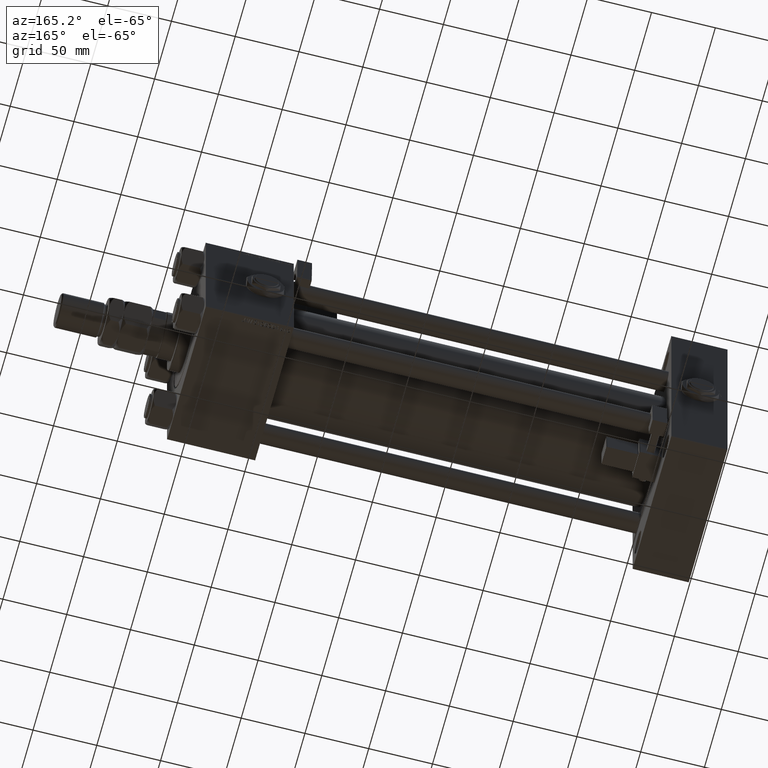
[diagram: clean part render]
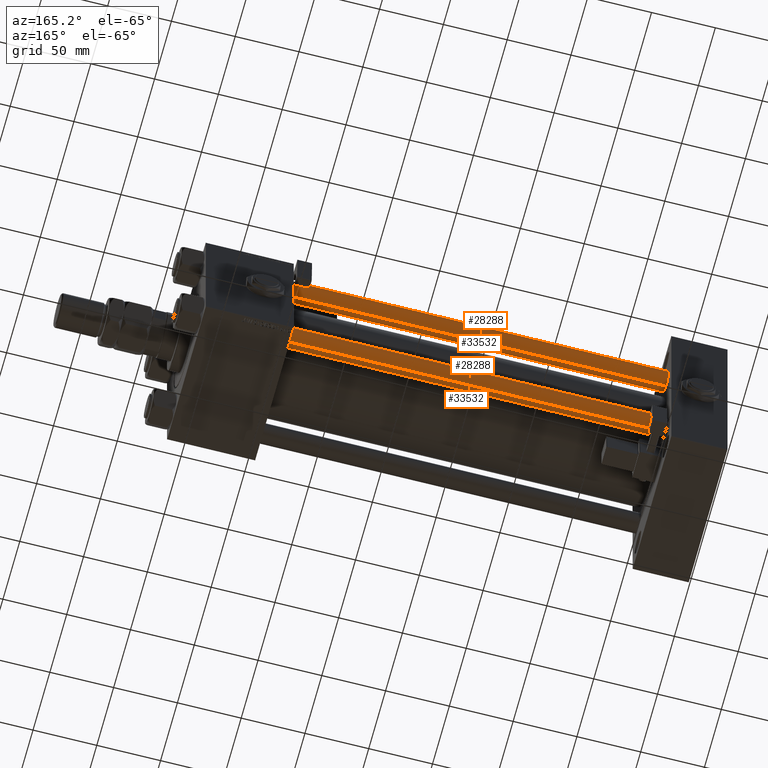
[diagram: same view with one multi-face feature highlighted, each face labeled with its STEP entity id]
A machine part, auxiliary view. The highlighted faces form ONE feature: a constant-radius fillet chain: 4 tangent blend faces with common blend radius 8 mm. The faces share edges in the B-rep.
Their STEP definitions:
[1] entity #28288 (Cylinder):
#1216 = VECTOR ( 'NONE', #50307, 1000.000000000000000 ) ;
#1632 = AXIS2_PLACEMENT_3D ( 'NONE', #35618, #31334, #9114 ) ;
#2679 = ORIENTED_EDGE ( 'NONE', *, *, #29659, .T. ) ;
#3242 = CARTESIAN_POINT ( 'NONE',  ( 0.000000000000000000, 0.000000000000000000, 417.5000000000001137 ) ) ;
#3433 = CIRCLE ( 'NONE', #35322, 8.000000000000000000 ) ;
#5420 = LINE ( 'NONE', #52420, #9700 ) ;
#5501 = EDGE_LOOP ( 'NONE', ( #35986, #39885, #2679, #21783 ) ) ;
#6472 = CARTESIAN_POINT ( 'NONE',  ( -8.000000000000000000, 0.000000000000000000, 418.0000000000000000 ) ) ;
#7510 = VERTEX_POINT ( 'NONE', #45230 ) ;
#8094 = DIRECTION ( 'NONE',  ( 0.000000000000000000, 0.000000000000000000, -1.000000000000000000 ) ) ;
#9114 = DIRECTION ( 'NONE',  ( 1.000000000000000000, 0.000000000000000000, 0.000000000000000000 ) ) ;
#9700 = VECTOR ( 'NONE', #48703, 1000.000000000000000 ) ;
#12555 = CARTESIAN_POINT ( 'NONE',  ( -8.000000000000000000, 0.000000000000000000, 417.5000000000001137 ) ) ;
#13115 = DIRECTION ( 'NONE',  ( -1.000000000000000000, 0.000000000000000000, 0.000000000000000000 ) ) ;
#13492 = CARTESIAN_POINT ( 'NONE',  ( -8.000000000000000000, 0.000000000000000000, 0.5000000000000004441 ) ) ;
#14981 = EDGE_CURVE ( 'NONE', #33314, #7510, #18062, .T. ) ;
#16533 = DIRECTION ( 'NONE',  ( -0.000000000000000000, -0.000000000000000000, -1.000000000000000000 ) ) ;
#18062 = CIRCLE ( 'NONE', #1632, 8.000000000000000000 ) ;
#18331 = VERTEX_POINT ( 'NONE', #31980 ) ;
#18462 = AXIS2_PLACEMENT_3D ( 'NONE', #52120, #16533, #13115 ) ;
#20556 = VERTEX_POINT ( 'NONE', #12555 ) ;
#21783 = ORIENTED_EDGE ( 'NONE', *, *, #14981, .T. ) ;
#28288 = ADVANCED_FACE ( 'NONE', ( #55538 ), #46993, .T. ) ;
#29659 = EDGE_CURVE ( 'NONE', #20556, #33314, #49749, .T. ) ;
#31334 = DIRECTION ( 'NONE',  ( -0.000000000000000000, -0.000000000000000000, 1.000000000000000000 ) ) ;
#31980 = CARTESIAN_POINT ( 'NONE',  ( 8.000000000000000000, 9.797174393178825657E-16, 417.5000000000001137 ) ) ;
#33314 = VERTEX_POINT ( 'NONE', #13492 ) ;
#35322 = AXIS2_PLACEMENT_3D ( 'NONE', #3242, #8094, #54547 ) ;
#35618 = CARTESIAN_POINT ( 'NONE',  ( 0.000000000000000000, 0.000000000000000000, 0.5000000000000004441 ) ) ;
#35878 = EDGE_CURVE ( 'NONE', #18331, #7510, #5420, .T. ) ;
#35986 = ORIENTED_EDGE ( 'NONE', *, *, #35878, .F. ) ;
#39885 = ORIENTED_EDGE ( 'NONE', *, *, #43766, .T. ) ;
#43766 = EDGE_CURVE ( 'NONE', #18331, #20556, #3433, .T. ) ;
#45230 = CARTESIAN_POINT ( 'NONE',  ( 8.000000000000000000, 9.797174393178825657E-16, 0.5000000000000004441 ) ) ;
#46993 = CYLINDRICAL_SURFACE ( 'NONE', #18462, 8.000000000000000000 ) ;
#48703 = DIRECTION ( 'NONE',  ( -0.000000000000000000, -0.000000000000000000, -1.000000000000000000 ) ) ;
#49749 = LINE ( 'NONE', #6472, #1216 ) ;
#50307 = DIRECTION ( 'NONE',  ( -0.000000000000000000, -0.000000000000000000, -1.000000000000000000 ) ) ;
#52120 = CARTESIAN_POINT ( 'NONE',  ( 0.000000000000000000, 0.000000000000000000, 418.0000000000000000 ) ) ;
#52420 = CARTESIAN_POINT ( 'NONE',  ( 8.000000000000000000, 9.797174393178825657E-16, 418.0000000000000000 ) ) ;
#54547 = DIRECTION ( 'NONE',  ( 1.000000000000000000, 0.000000000000000000, 0.000000000000000000 ) ) ;
#55538 = FACE_OUTER_BOUND ( 'NONE', #5501, .T. ) ;
[2] entity #33532 (Cylinder):
#633 = ORIENTED_EDGE ( 'NONE', *, *, #29659, .F. ) ;
#1216 = VECTOR ( 'NONE', #50307, 1000.000000000000000 ) ;
#3393 = DIRECTION ( 'NONE',  ( -0.000000000000000000, -0.000000000000000000, -1.000000000000000000 ) ) ;
#5420 = LINE ( 'NONE', #52420, #9700 ) ;
#6262 = DIRECTION ( 'NONE',  ( -0.000000000000000000, -0.000000000000000000, 1.000000000000000000 ) ) ;
#6472 = CARTESIAN_POINT ( 'NONE',  ( -8.000000000000000000, 0.000000000000000000, 418.0000000000000000 ) ) ;
#7510 = VERTEX_POINT ( 'NONE', #45230 ) ;
#9700 = VECTOR ( 'NONE', #48703, 1000.000000000000000 ) ;
#10933 = CYLINDRICAL_SURFACE ( 'NONE', #52299, 8.000000000000000000 ) ;
#12043 = EDGE_CURVE ( 'NONE', #20556, #18331, #39774, .T. ) ;
#12555 = CARTESIAN_POINT ( 'NONE',  ( -8.000000000000000000, 0.000000000000000000, 417.5000000000001137 ) ) ;
#13492 = CARTESIAN_POINT ( 'NONE',  ( -8.000000000000000000, 0.000000000000000000, 0.5000000000000004441 ) ) ;
#16712 = ORIENTED_EDGE ( 'NONE', *, *, #44258, .T. ) ;
#18331 = VERTEX_POINT ( 'NONE', #31980 ) ;
#20556 = VERTEX_POINT ( 'NONE', #12555 ) ;
#22635 = ORIENTED_EDGE ( 'NONE', *, *, #35878, .T. ) ;
#23511 = CIRCLE ( 'NONE', #30799, 8.000000000000000000 ) ;
#25007 = DIRECTION ( 'NONE',  ( 1.000000000000000000, 0.000000000000000000, 0.000000000000000000 ) ) ;
#29659 = EDGE_CURVE ( 'NONE', #20556, #33314, #49749, .T. ) ;
#30799 = AXIS2_PLACEMENT_3D ( 'NONE', #49538, #6262, #45829 ) ;
#31980 = CARTESIAN_POINT ( 'NONE',  ( 8.000000000000000000, 9.797174393178825657E-16, 417.5000000000001137 ) ) ;
#33314 = VERTEX_POINT ( 'NONE', #13492 ) ;
#33532 = ADVANCED_FACE ( 'NONE', ( #41676 ), #10933, .T. ) ;
#33889 = CARTESIAN_POINT ( 'NONE',  ( 0.000000000000000000, 0.000000000000000000, 418.0000000000000000 ) ) ;
#35878 = EDGE_CURVE ( 'NONE', #18331, #7510, #5420, .T. ) ;
#36303 = DIRECTION ( 'NONE',  ( -1.000000000000000000, 0.000000000000000000, 0.000000000000000000 ) ) ;
#37302 = DIRECTION ( 'NONE',  ( 0.000000000000000000, 0.000000000000000000, -1.000000000000000000 ) ) ;
#39774 = CIRCLE ( 'NONE', #42465, 8.000000000000000000 ) ;
#41676 = FACE_OUTER_BOUND ( 'NONE', #54119, .T. ) ;
#42465 = AXIS2_PLACEMENT_3D ( 'NONE', #50650, #37302, #25007 ) ;
#44258 = EDGE_CURVE ( 'NONE', #7510, #33314, #23511, .T. ) ;
#45230 = CARTESIAN_POINT ( 'NONE',  ( 8.000000000000000000, 9.797174393178825657E-16, 0.5000000000000004441 ) ) ;
#45829 = DIRECTION ( 'NONE',  ( 1.000000000000000000, 0.000000000000000000, 0.000000000000000000 ) ) ;
#48703 = DIRECTION ( 'NONE',  ( -0.000000000000000000, -0.000000000000000000, -1.000000000000000000 ) ) ;
#49538 = CARTESIAN_POINT ( 'NONE',  ( 0.000000000000000000, 0.000000000000000000, 0.5000000000000004441 ) ) ;
#49749 = LINE ( 'NONE', #6472, #1216 ) ;
#50307 = DIRECTION ( 'NONE',  ( -0.000000000000000000, -0.000000000000000000, -1.000000000000000000 ) ) ;
#50650 = CARTESIAN_POINT ( 'NONE',  ( 0.000000000000000000, 0.000000000000000000, 417.5000000000001137 ) ) ;
#51231 = ORIENTED_EDGE ( 'NONE', *, *, #12043, .T. ) ;
#52299 = AXIS2_PLACEMENT_3D ( 'NONE', #33889, #3393, #36303 ) ;
#52420 = CARTESIAN_POINT ( 'NONE',  ( 8.000000000000000000, 9.797174393178825657E-16, 418.0000000000000000 ) ) ;
#54119 = EDGE_LOOP ( 'NONE', ( #51231, #22635, #16712, #633 ) ) ;
[3] entity #28288 (Cylinder):
#1216 = VECTOR ( 'NONE', #50307, 1000.000000000000000 ) ;
#1632 = AXIS2_PLACEMENT_3D ( 'NONE', #35618, #31334, #9114 ) ;
#2679 = ORIENTED_EDGE ( 'NONE', *, *, #29659, .T. ) ;
#3242 = CARTESIAN_POINT ( 'NONE',  ( 0.000000000000000000, 0.000000000000000000, 417.5000000000001137 ) ) ;
#3433 = CIRCLE ( 'NONE', #35322, 8.000000000000000000 ) ;
#5420 = LINE ( 'NONE', #52420, #9700 ) ;
#5501 = EDGE_LOOP ( 'NONE', ( #35986, #39885, #2679, #21783 ) ) ;
#6472 = CARTESIAN_POINT ( 'NONE',  ( -8.000000000000000000, 0.000000000000000000, 418.0000000000000000 ) ) ;
#7510 = VERTEX_POINT ( 'NONE', #45230 ) ;
#8094 = DIRECTION ( 'NONE',  ( 0.000000000000000000, 0.000000000000000000, -1.000000000000000000 ) ) ;
#9114 = DIRECTION ( 'NONE',  ( 1.000000000000000000, 0.000000000000000000, 0.000000000000000000 ) ) ;
#9700 = VECTOR ( 'NONE', #48703, 1000.000000000000000 ) ;
#12555 = CARTESIAN_POINT ( 'NONE',  ( -8.000000000000000000, 0.000000000000000000, 417.5000000000001137 ) ) ;
#13115 = DIRECTION ( 'NONE',  ( -1.000000000000000000, 0.000000000000000000, 0.000000000000000000 ) ) ;
#13492 = CARTESIAN_POINT ( 'NONE',  ( -8.000000000000000000, 0.000000000000000000, 0.5000000000000004441 ) ) ;
#14981 = EDGE_CURVE ( 'NONE', #33314, #7510, #18062, .T. ) ;
#16533 = DIRECTION ( 'NONE',  ( -0.000000000000000000, -0.000000000000000000, -1.000000000000000000 ) ) ;
#18062 = CIRCLE ( 'NONE', #1632, 8.000000000000000000 ) ;
#18331 = VERTEX_POINT ( 'NONE', #31980 ) ;
#18462 = AXIS2_PLACEMENT_3D ( 'NONE', #52120, #16533, #13115 ) ;
#20556 = VERTEX_POINT ( 'NONE', #12555 ) ;
#21783 = ORIENTED_EDGE ( 'NONE', *, *, #14981, .T. ) ;
#28288 = ADVANCED_FACE ( 'NONE', ( #55538 ), #46993, .T. ) ;
#29659 = EDGE_CURVE ( 'NONE', #20556, #33314, #49749, .T. ) ;
#31334 = DIRECTION ( 'NONE',  ( -0.000000000000000000, -0.000000000000000000, 1.000000000000000000 ) ) ;
#31980 = CARTESIAN_POINT ( 'NONE',  ( 8.000000000000000000, 9.797174393178825657E-16, 417.5000000000001137 ) ) ;
#33314 = VERTEX_POINT ( 'NONE', #13492 ) ;
#35322 = AXIS2_PLACEMENT_3D ( 'NONE', #3242, #8094, #54547 ) ;
#35618 = CARTESIAN_POINT ( 'NONE',  ( 0.000000000000000000, 0.000000000000000000, 0.5000000000000004441 ) ) ;
#35878 = EDGE_CURVE ( 'NONE', #18331, #7510, #5420, .T. ) ;
#35986 = ORIENTED_EDGE ( 'NONE', *, *, #35878, .F. ) ;
#39885 = ORIENTED_EDGE ( 'NONE', *, *, #43766, .T. ) ;
#43766 = EDGE_CURVE ( 'NONE', #18331, #20556, #3433, .T. ) ;
#45230 = CARTESIAN_POINT ( 'NONE',  ( 8.000000000000000000, 9.797174393178825657E-16, 0.5000000000000004441 ) ) ;
#46993 = CYLINDRICAL_SURFACE ( 'NONE', #18462, 8.000000000000000000 ) ;
#48703 = DIRECTION ( 'NONE',  ( -0.000000000000000000, -0.000000000000000000, -1.000000000000000000 ) ) ;
#49749 = LINE ( 'NONE', #6472, #1216 ) ;
#50307 = DIRECTION ( 'NONE',  ( -0.000000000000000000, -0.000000000000000000, -1.000000000000000000 ) ) ;
#52120 = CARTESIAN_POINT ( 'NONE',  ( 0.000000000000000000, 0.000000000000000000, 418.0000000000000000 ) ) ;
#52420 = CARTESIAN_POINT ( 'NONE',  ( 8.000000000000000000, 9.797174393178825657E-16, 418.0000000000000000 ) ) ;
#54547 = DIRECTION ( 'NONE',  ( 1.000000000000000000, 0.000000000000000000, 0.000000000000000000 ) ) ;
#55538 = FACE_OUTER_BOUND ( 'NONE', #5501, .T. ) ;
[4] entity #33532 (Cylinder):
#633 = ORIENTED_EDGE ( 'NONE', *, *, #29659, .F. ) ;
#1216 = VECTOR ( 'NONE', #50307, 1000.000000000000000 ) ;
#3393 = DIRECTION ( 'NONE',  ( -0.000000000000000000, -0.000000000000000000, -1.000000000000000000 ) ) ;
#5420 = LINE ( 'NONE', #52420, #9700 ) ;
#6262 = DIRECTION ( 'NONE',  ( -0.000000000000000000, -0.000000000000000000, 1.000000000000000000 ) ) ;
#6472 = CARTESIAN_POINT ( 'NONE',  ( -8.000000000000000000, 0.000000000000000000, 418.0000000000000000 ) ) ;
#7510 = VERTEX_POINT ( 'NONE', #45230 ) ;
#9700 = VECTOR ( 'NONE', #48703, 1000.000000000000000 ) ;
#10933 = CYLINDRICAL_SURFACE ( 'NONE', #52299, 8.000000000000000000 ) ;
#12043 = EDGE_CURVE ( 'NONE', #20556, #18331, #39774, .T. ) ;
#12555 = CARTESIAN_POINT ( 'NONE',  ( -8.000000000000000000, 0.000000000000000000, 417.5000000000001137 ) ) ;
#13492 = CARTESIAN_POINT ( 'NONE',  ( -8.000000000000000000, 0.000000000000000000, 0.5000000000000004441 ) ) ;
#16712 = ORIENTED_EDGE ( 'NONE', *, *, #44258, .T. ) ;
#18331 = VERTEX_POINT ( 'NONE', #31980 ) ;
#20556 = VERTEX_POINT ( 'NONE', #12555 ) ;
#22635 = ORIENTED_EDGE ( 'NONE', *, *, #35878, .T. ) ;
#23511 = CIRCLE ( 'NONE', #30799, 8.000000000000000000 ) ;
#25007 = DIRECTION ( 'NONE',  ( 1.000000000000000000, 0.000000000000000000, 0.000000000000000000 ) ) ;
#29659 = EDGE_CURVE ( 'NONE', #20556, #33314, #49749, .T. ) ;
#30799 = AXIS2_PLACEMENT_3D ( 'NONE', #49538, #6262, #45829 ) ;
#31980 = CARTESIAN_POINT ( 'NONE',  ( 8.000000000000000000, 9.797174393178825657E-16, 417.5000000000001137 ) ) ;
#33314 = VERTEX_POINT ( 'NONE', #13492 ) ;
#33532 = ADVANCED_FACE ( 'NONE', ( #41676 ), #10933, .T. ) ;
#33889 = CARTESIAN_POINT ( 'NONE',  ( 0.000000000000000000, 0.000000000000000000, 418.0000000000000000 ) ) ;
#35878 = EDGE_CURVE ( 'NONE', #18331, #7510, #5420, .T. ) ;
#36303 = DIRECTION ( 'NONE',  ( -1.000000000000000000, 0.000000000000000000, 0.000000000000000000 ) ) ;
#37302 = DIRECTION ( 'NONE',  ( 0.000000000000000000, 0.000000000000000000, -1.000000000000000000 ) ) ;
#39774 = CIRCLE ( 'NONE', #42465, 8.000000000000000000 ) ;
#41676 = FACE_OUTER_BOUND ( 'NONE', #54119, .T. ) ;
#42465 = AXIS2_PLACEMENT_3D ( 'NONE', #50650, #37302, #25007 ) ;
#44258 = EDGE_CURVE ( 'NONE', #7510, #33314, #23511, .T. ) ;
#45230 = CARTESIAN_POINT ( 'NONE',  ( 8.000000000000000000, 9.797174393178825657E-16, 0.5000000000000004441 ) ) ;
#45829 = DIRECTION ( 'NONE',  ( 1.000000000000000000, 0.000000000000000000, 0.000000000000000000 ) ) ;
#48703 = DIRECTION ( 'NONE',  ( -0.000000000000000000, -0.000000000000000000, -1.000000000000000000 ) ) ;
#49538 = CARTESIAN_POINT ( 'NONE',  ( 0.000000000000000000, 0.000000000000000000, 0.5000000000000004441 ) ) ;
#49749 = LINE ( 'NONE', #6472, #1216 ) ;
#50307 = DIRECTION ( 'NONE',  ( -0.000000000000000000, -0.000000000000000000, -1.000000000000000000 ) ) ;
#50650 = CARTESIAN_POINT ( 'NONE',  ( 0.000000000000000000, 0.000000000000000000, 417.5000000000001137 ) ) ;
#51231 = ORIENTED_EDGE ( 'NONE', *, *, #12043, .T. ) ;
#52299 = AXIS2_PLACEMENT_3D ( 'NONE', #33889, #3393, #36303 ) ;
#52420 = CARTESIAN_POINT ( 'NONE',  ( 8.000000000000000000, 9.797174393178825657E-16, 418.0000000000000000 ) ) ;
#54119 = EDGE_LOOP ( 'NONE', ( #51231, #22635, #16712, #633 ) ) ;